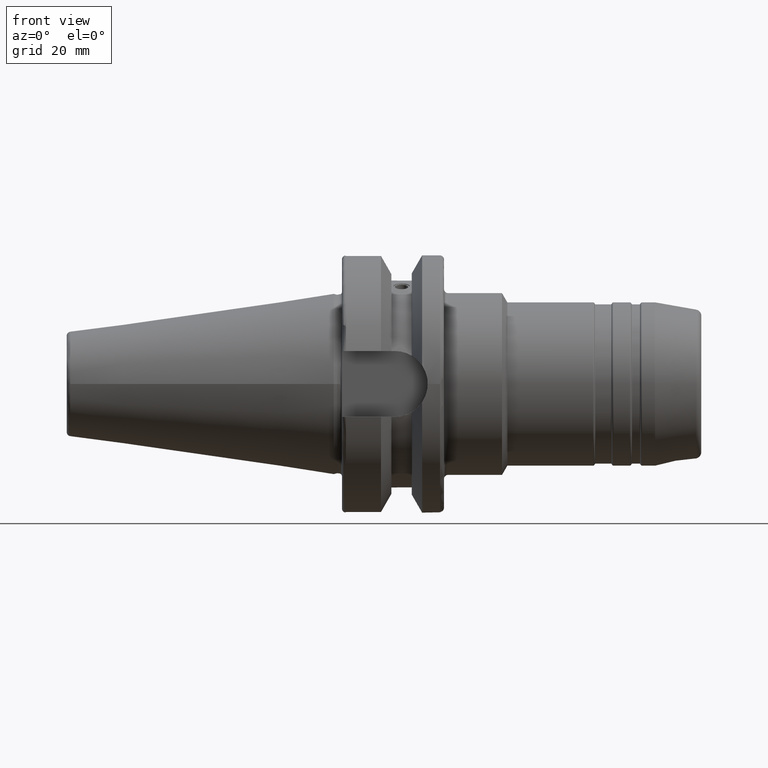
[diagram: clean part render]
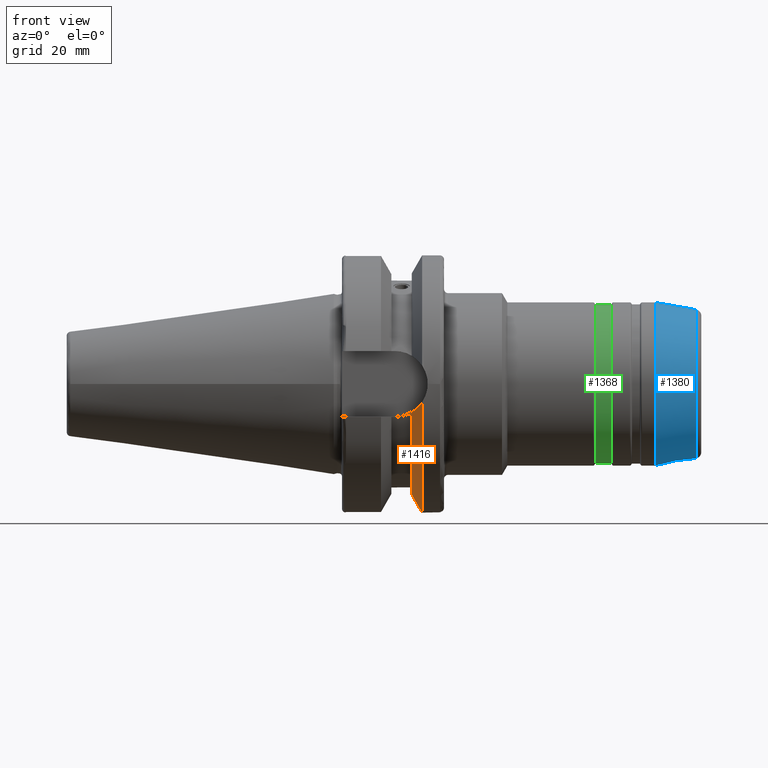
[diagram: same view with three faces highlighted in distinct colors, each labeled with its STEP entity id]
A machine part, front view with three faces highlighted in distinct colors.
Their STEP definitions:

[orange] entity #1416 — the highlighted conical surface has half-angle 60.125 deg.
#85=CONICAL_SURFACE('',#1608,29.2970358274569,1.0493792127616);
#118=B_SPLINE_CURVE_WITH_KNOTS('',3,(#2537,#2538,#2539,#2540,#2541,#2542),
 .UNSPECIFIED.,.F.,.F.,(4,2,4),(3.12975744792547,3.62699288756974,3.70848737461386),
 .UNSPECIFIED.);
#126=B_SPLINE_CURVE_WITH_KNOTS('',3,(#2653,#2654,#2655,#2656,#2657,#2658),
 .UNSPECIFIED.,.F.,.F.,(4,2,4),(1.4642102789956,1.54570476603972,2.04294020568399),
 .UNSPECIFIED.);
#189=FACE_OUTER_BOUND('',#287,.T.);
#287=EDGE_LOOP('',(#1170,#1171,#1172,#1173));
#525=CIRCLE('',#1605,31.5);
#528=CIRCLE('',#1609,27.0940716549138);
#634=VERTEX_POINT('',#2534);
#635=VERTEX_POINT('',#2536);
#657=VERTEX_POINT('',#2635);
#659=VERTEX_POINT('',#2651);
#812=EDGE_CURVE('',#635,#634,#118,.T.);
#838=EDGE_CURVE('',#635,#657,#525,.T.);
#842=EDGE_CURVE('',#634,#659,#528,.T.);
#843=EDGE_CURVE('',#659,#657,#126,.T.);
#1170=ORIENTED_EDGE('',*,*,#812,.T.);
#1171=ORIENTED_EDGE('',*,*,#842,.T.);
#1172=ORIENTED_EDGE('',*,*,#843,.T.);
#1173=ORIENTED_EDGE('',*,*,#838,.F.);
#1416=ADVANCED_FACE('',(#189),#85,.T.);
#1605=AXIS2_PLACEMENT_3D('',#2636,#1993,#1994);
#1608=AXIS2_PLACEMENT_3D('',#2650,#1999,#2000);
#1609=AXIS2_PLACEMENT_3D('',#2652,#2001,#2002);
#1993=DIRECTION('center_axis',(1.,0.,0.));
#1994=DIRECTION('ref_axis',(0.,0.,-1.));
#1999=DIRECTION('center_axis',(1.,0.,0.));
#2000=DIRECTION('ref_axis',(0.,1.,0.));
#2001=DIRECTION('center_axis',(1.,0.,0.));
#2002=DIRECTION('ref_axis',(0.,0.,-1.));
#2534=CARTESIAN_POINT('',(19.1,-26.201311395455,-6.89782574439221));
#2536=CARTESIAN_POINT('',(21.6309636926618,-31.1782420264945,-4.4907932637046));
#2537=CARTESIAN_POINT('Ctrl Pts',(21.6309636926618,-31.1782420264945,-4.4907932637046));
#2538=CARTESIAN_POINT('Ctrl Pts',(20.9728756148303,-29.8797957262939,-5.46983244373115));
#2539=CARTESIAN_POINT('Ctrl Pts',(20.1784155384866,-28.3157123387484,-6.18231368976925));
#2540=CARTESIAN_POINT('Ctrl Pts',(19.3406963650697,-26.6728819297428,-6.74867108656039));
#2541=CARTESIAN_POINT('Ctrl Pts',(19.2210929544554,-26.4384736933511,-6.82497151762395));
#2542=CARTESIAN_POINT('Ctrl Pts',(19.1,-26.201311395455,-6.89782574439221));
#2635=CARTESIAN_POINT('',(21.6309636926618,31.1782420264945,-4.4907932637046));
#2636=CARTESIAN_POINT('Origin',(21.6309636926618,0.,0.));
#2650=CARTESIAN_POINT('Origin',(20.3654818463309,0.,0.));
#2651=CARTESIAN_POINT('',(19.1,26.201311395455,-6.89782574439221));
#2652=CARTESIAN_POINT('Origin',(19.1,0.,0.));
#2653=CARTESIAN_POINT('Ctrl Pts',(19.1,26.201311395455,-6.89782574439221));
#2654=CARTESIAN_POINT('Ctrl Pts',(19.2210929544554,26.438473693351,-6.82497151762395));
#2655=CARTESIAN_POINT('Ctrl Pts',(19.3406963650697,26.6728819297428,-6.74867108656039));
#2656=CARTESIAN_POINT('Ctrl Pts',(20.1784155384866,28.3157123387484,-6.18231368976925));
#2657=CARTESIAN_POINT('Ctrl Pts',(20.9728756148303,29.8797957262939,-5.46983244373115));
#2658=CARTESIAN_POINT('Ctrl Pts',(21.6309636926618,31.1782420264945,-4.4907932637046));

[blue] entity #1380 — the highlighted conical surface has half-angle 10 deg.
#80=CONICAL_SURFACE('',#1525,19.,0.174532925199432);
#153=FACE_OUTER_BOUND('',#243,.T.);
#243=EDGE_LOOP('',(#994,#995,#996,#997));
#337=LINE('',#2319,#407);
#407=VECTOR('',#1798,19.);
#498=CIRCLE('',#1524,18.2185621827524);
#499=CIRCLE('',#1526,19.9848077530122);
#589=VERTEX_POINT('',#2314);
#590=VERTEX_POINT('',#2318);
#742=EDGE_CURVE('',#589,#589,#498,.T.);
#743=EDGE_CURVE('',#589,#590,#337,.T.);
#744=EDGE_CURVE('',#590,#590,#499,.T.);
#994=ORIENTED_EDGE('',*,*,#742,.F.);
#995=ORIENTED_EDGE('',*,*,#743,.T.);
#996=ORIENTED_EDGE('',*,*,#744,.F.);
#997=ORIENTED_EDGE('',*,*,#743,.F.);
#1380=ADVANCED_FACE('',(#153),#80,.T.);
#1524=AXIS2_PLACEMENT_3D('',#2316,#1794,#1795);
#1525=AXIS2_PLACEMENT_3D('',#2317,#1796,#1797);
#1526=AXIS2_PLACEMENT_3D('',#2320,#1799,#1800);
#1794=DIRECTION('center_axis',(1.,0.,0.));
#1795=DIRECTION('ref_axis',(0.,0.,1.));
#1796=DIRECTION('center_axis',(-1.,0.,0.));
#1797=DIRECTION('ref_axis',(0.,0.,-1.));
#1798=DIRECTION('',(-0.984807753012208,-2.12657684957577E-17,0.17364817766693));
#1799=DIRECTION('center_axis',(-1.,0.,0.));
#1800=DIRECTION('ref_axis',(0.,0.,1.));
#2314=CARTESIAN_POINT('',(88.7604722665004,-2.23113038621747E-15,18.2185621827524));
#2316=CARTESIAN_POINT('Origin',(88.7604722665004,-2.23113038621747E-15,
0.));
#2317=CARTESIAN_POINT('Origin',(84.3287181803823,0.,0.));
#2318=CARTESIAN_POINT('',(78.7435958749056,-2.44743308463016E-15,19.9848077530122));
#2319=CARTESIAN_POINT('',(84.3287181803823,-2.32682891837997E-15,19.));
#2320=CARTESIAN_POINT('Origin',(78.7435958749056,-2.44743308463016E-15,
0.));

[green] entity #1368 — the highlighted cylindrical surface (bore or boss wall) has radius 19.5 mm, axis along (1, 0, 0).
#141=FACE_OUTER_BOUND('',#231,.T.);
#231=EDGE_LOOP('',(#946,#947,#948,#949));
#331=LINE('',#2271,#401);
#401=VECTOR('',#1732,19.5);
#478=CIRCLE('',#1492,19.5);
#481=CIRCLE('',#1496,19.5);
#576=VERTEX_POINT('',#2264);
#578=VERTEX_POINT('',#2270);
#716=EDGE_CURVE('',#576,#576,#478,.T.);
#719=EDGE_CURVE('',#576,#578,#331,.T.);
#720=EDGE_CURVE('',#578,#578,#481,.T.);
#946=ORIENTED_EDGE('',*,*,#716,.F.);
#947=ORIENTED_EDGE('',*,*,#719,.T.);
#948=ORIENTED_EDGE('',*,*,#720,.F.);
#949=ORIENTED_EDGE('',*,*,#719,.F.);
#1329=CYLINDRICAL_SURFACE('',#1495,19.5);
#1368=ADVANCED_FACE('',(#141),#1329,.T.);
#1492=AXIS2_PLACEMENT_3D('',#2265,#1724,#1725);
#1495=AXIS2_PLACEMENT_3D('',#2269,#1730,#1731);
#1496=AXIS2_PLACEMENT_3D('',#2272,#1733,#1734);
#1724=DIRECTION('center_axis',(1.,0.,0.));
#1725=DIRECTION('ref_axis',(0.,1.22464679914735E-16,1.));
#1730=DIRECTION('center_axis',(1.,0.,0.));
#1731=DIRECTION('ref_axis',(0.,0.,-1.));
#1732=DIRECTION('',(-1.,0.,0.));
#1733=DIRECTION('center_axis',(-1.,0.,0.));
#1734=DIRECTION('ref_axis',(0.,1.22464679914735E-16,1.));
#2264=CARTESIAN_POINT('',(67.8845299461621,-2.38806125833734E-15,19.5));
#2265=CARTESIAN_POINT('Origin',(67.8845299461621,0.,0.));
#2269=CARTESIAN_POINT('Origin',(66.,0.,0.));
#2270=CARTESIAN_POINT('',(64.1154700538379,-2.38806125833734E-15,19.5));
#2271=CARTESIAN_POINT('',(66.,-2.38806125833734E-15,19.5));
#2272=CARTESIAN_POINT('Origin',(64.1154700538379,0.,0.));